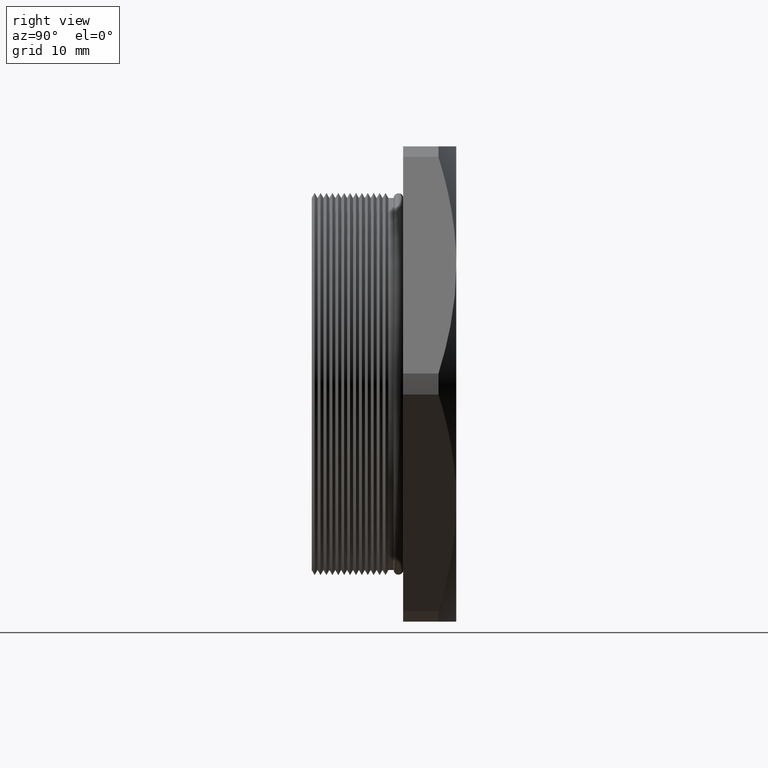
[diagram: clean part render]
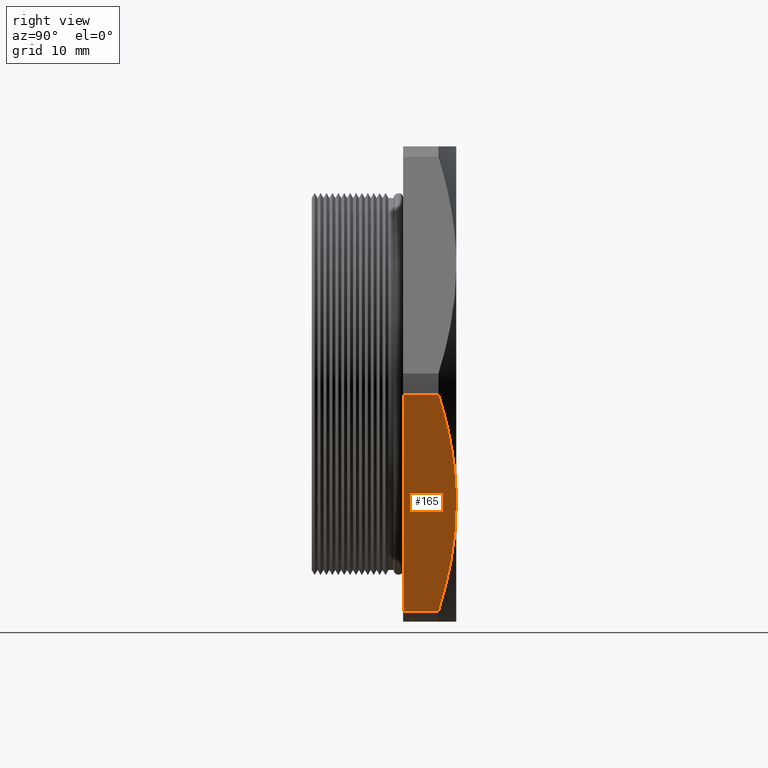
[diagram: same view with one face highlighted and labeled with its STEP entity id]
A machine part, right view. The second image highlights one B-rep face of the part: STEP entity #165.
In plain terms, the highlighted planar face has unit normal (0.866, 0, -0.5).
Its self-contained STEP definition (entity closure, byte-faithful):
#165 = ADVANCED_FACE ( 'NONE', ( #1069 ), #1068, .T. ) ;
#166 = EDGE_LOOP ( 'NONE', ( #167, #207, #210, #218, #219 ) ) ;
#167 = ORIENTED_EDGE ( 'NONE', *, *, #392, .T. ) ;
#195 = EDGE_CURVE ( 'NONE', #394, #469, #1129, .T. ) ;
#207 = ORIENTED_EDGE ( 'NONE', *, *, #208, .T. ) ;
#208 = EDGE_CURVE ( 'NONE', #390, #209, #1154, .T. ) ;
#209 = VERTEX_POINT ( 'NONE', #1153 ) ;
#210 = ORIENTED_EDGE ( 'NONE', *, *, #217, .T. ) ;
#217 = EDGE_CURVE ( 'NONE', #209, #374, #1182, .T. ) ;
#218 = ORIENTED_EDGE ( 'NONE', *, *, #396, .T. ) ;
#219 = ORIENTED_EDGE ( 'NONE', *, *, #195, .T. ) ;
#374 = VERTEX_POINT ( 'NONE', #1531 ) ;
#390 = VERTEX_POINT ( 'NONE', #1569 ) ;
#392 = EDGE_CURVE ( 'NONE', #469, #390, #1568, .T. ) ;
#394 = VERTEX_POINT ( 'NONE', #1559 ) ;
#396 = EDGE_CURVE ( 'NONE', #374, #394, #1558, .T. ) ;
#469 = VERTEX_POINT ( 'NONE', #1720 ) ;
#1064 = DIRECTION ( 'NONE',  ( -0.4999999999999998300, 0.0000000000000000000, -0.8660254037844386000 ) ) ;
#1065 = DIRECTION ( 'NONE',  ( 0.8660254037844387100, 0.0000000000000000000, -0.4999999999999998900 ) ) ;
#1066 = CARTESIAN_POINT ( 'NONE',  ( 0.9295339333952972200, -1.365923996832131600E-016, -1.308968531923034100E-016 ) ) ;
#1067 = AXIS2_PLACEMENT_3D ( 'NONE', #1066, #1065, #1064 ) ;
#1068 = PLANE ( 'NONE',  #1067 ) ;
#1069 = FACE_OUTER_BOUND ( 'NONE', #166, .T. ) ;
#1126 = DIRECTION ( 'NONE',  ( -0.4999999999999998300, 0.0000000000000000000, -0.8660254037844386000 ) ) ;
#1127 = VECTOR ( 'NONE', #1126, 39.37007874015748900 ) ;
#1128 = CARTESIAN_POINT ( 'NONE',  ( 0.5396504500464731600, 0.3100000000000000000, -0.6752980021920979000 ) ) ;
#1129 = LINE ( 'NONE', #1128, #1127 ) ;
#1147 = CARTESIAN_POINT ( 'NONE',  ( 0.6971504500464730200, 0.4899999999999999900, -0.4024999999999998600 ) ) ;
#1148 = CARTESIAN_POINT ( 'NONE',  ( 0.6612438934434914400, 0.4899999999999998800, -0.4646919803612117300 ) ) ;
#1149 = CARTESIAN_POINT ( 'NONE',  ( 0.6256761465038169800, 0.4843740782308452700, -0.5262971251714803100 ) ) ;
#1150 = CARTESIAN_POINT ( 'NONE',  ( 0.5551208279755551800, 0.4634884447181006900, -0.6485025216066360200 ) ) ;
#1151 = CARTESIAN_POINT ( 'NONE',  ( 0.5201300376486091000, 0.4482821800043976200, -0.7091083482498956600 ) ) ;
#1152 = CARTESIAN_POINT ( 'NONE',  ( 0.4853497639640151900, 0.4295802943293060600, -0.7693495493727634500 ) ) ;
#1153 = CARTESIAN_POINT ( 'NONE',  ( 0.6971504500464730200, 0.4899999999999999900, -0.4024999999999998600 ) ) ;
#1154 = B_SPLINE_CURVE_WITH_KNOTS ( 'NONE', 3,
 ( #1152, #1151, #1150, #1149, #1148, #1147 ),
 .UNSPECIFIED., .F., .F.,
 ( 4, 2, 4 ),
 ( 2.367078556350114000E-007, 0.005433129745490946800, 0.01086602278312625100 ),
 .UNSPECIFIED. ) ;
#1169 = CARTESIAN_POINT ( 'NONE',  ( 0.7329821065364048300, 0.4886098759984570700, -0.3404377504400840600 ) ) ;
#1170 = CARTESIAN_POINT ( 'NONE',  ( 0.7149937687483489700, 0.4900000000000000500, -0.3715944654327068600 ) ) ;
#1171 = CARTESIAN_POINT ( 'NONE',  ( 0.6971504500464730200, 0.4899999999999999900, -0.4024999999999998600 ) ) ;
#1182 = B_SPLINE_CURVE_WITH_KNOTS ( 'NONE', 3,
 ( #1171, #1170, #1169, #1227, #1226, #1225, #1224, #1223 ),
 .UNSPECIFIED., .F., .F.,
 ( 4, 2, 2, 4 ),
 ( 0.01086602278312625100, 0.01356583170703960800, 0.01626564063095296500, 0.02166525847877967900 ),
 .UNSPECIFIED. ) ;
#1223 = CARTESIAN_POINT ( 'NONE',  ( 0.9089511361289313000, 0.4295802943293059500, -0.03565045062723620800 ) ) ;
#1224 = CARTESIAN_POINT ( 'NONE',  ( 0.8743176447361201700, 0.4482032529187409700, -0.09563741736308432900 ) ) ;
#1225 = CARTESIAN_POINT ( 'NONE',  ( 0.8394029068589101700, 0.4634044384138373800, -0.1561115172993616200 ) ) ;
#1226 = CARTESIAN_POINT ( 'NONE',  ( 0.7864473115545125300, 0.4791072293914298000, -0.2478332989116342500 ) ) ;
#1227 = CARTESIAN_POINT ( 'NONE',  ( 0.7686980878689542200, 0.4831569840806346200, -0.2785758561299258600 ) ) ;
#1531 = CARTESIAN_POINT ( 'NONE',  ( 0.9089511361289313000, 0.4295802943293059500, -0.03565045062723620800 ) ) ;
#1555 = DIRECTION ( 'NONE',  ( 0.0000000000000000000, -1.000000000000000000, 0.0000000000000000000 ) ) ;
#1556 = VECTOR ( 'NONE', #1555, 39.37007874015748100 ) ;
#1557 = CARTESIAN_POINT ( 'NONE',  ( 0.9089511361289313000, 0.0000000000000000000, -0.03565045062723620800 ) ) ;
#1558 = LINE ( 'NONE', #1557, #1556 ) ;
#1559 = CARTESIAN_POINT ( 'NONE',  ( 0.9089511361289314100, 0.3099999999999998900, -0.03565045062723572900 ) ) ;
#1565 = DIRECTION ( 'NONE',  ( 0.0000000000000000000, 1.000000000000000000, 0.0000000000000000000 ) ) ;
#1566 = VECTOR ( 'NONE', #1565, 39.37007874015748100 ) ;
#1567 = CARTESIAN_POINT ( 'NONE',  ( 0.4853497639640153000, 0.0000000000000000000, -0.7693495493727635600 ) ) ;
#1568 = LINE ( 'NONE', #1567, #1566 ) ;
#1569 = CARTESIAN_POINT ( 'NONE',  ( 0.4853497639640151900, 0.4295802943293060600, -0.7693495493727634500 ) ) ;
#1720 = CARTESIAN_POINT ( 'NONE',  ( 0.4853497639640149100, 0.3099999999999998900, -0.7693495493727640100 ) ) ;